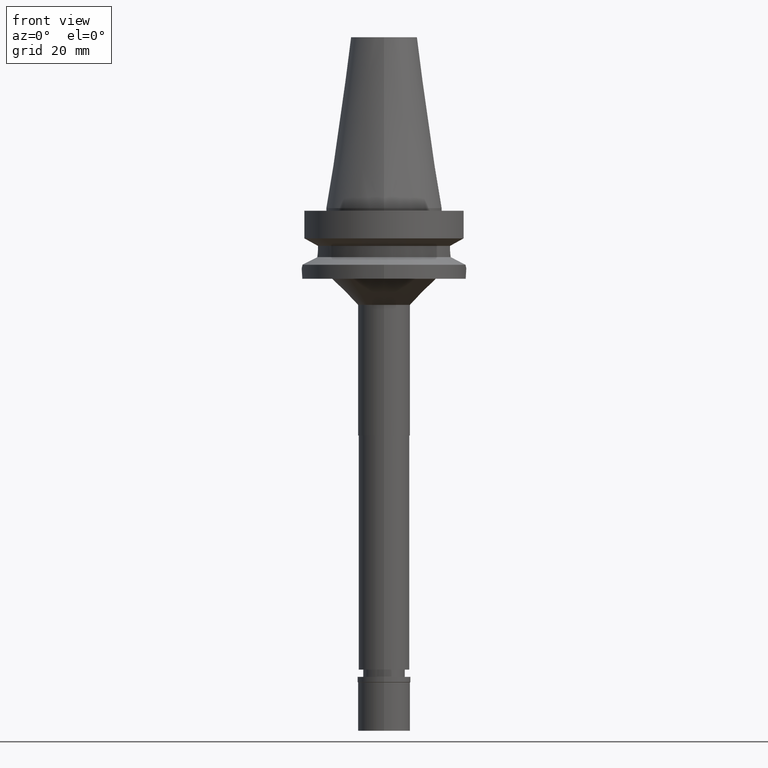
[diagram: clean part render]
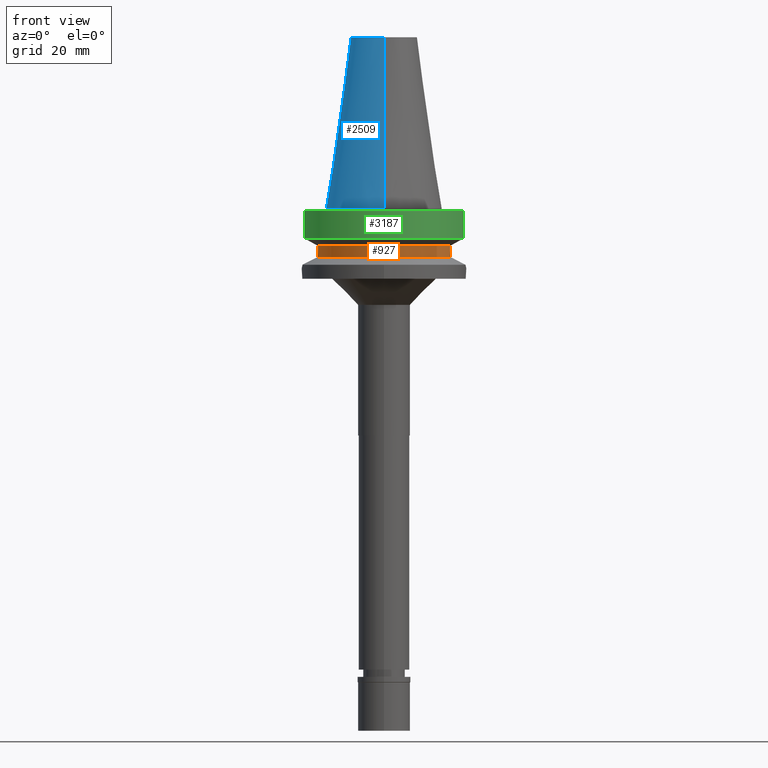
[diagram: same view with three faces highlighted in distinct colors, each labeled with its STEP entity id]
A machine part, front view with three faces highlighted in distinct colors.
Their STEP definitions:

[orange] entity #927 — the highlighted cylindrical surface (partial cylindrical patch) has radius 26.5 mm, axis along (0, 0, -1).
#59 = CARTESIAN_POINT ( 'NONE',  ( -25.35411833098896750, -7.708843546315279127, -17.27003765536344915 ) ) ;
#77 = VERTEX_POINT ( 'NONE', #2880 ) ;
#136 = CARTESIAN_POINT ( 'NONE',  ( 0.0000000000000000000, 0.0000000000000000000, -18.74774300138999905 ) ) ;
#186 = DIRECTION ( 'NONE',  ( 0.0000000000000000000, 0.0000000000000000000, -1.000000000000000000 ) ) ;
#199 = CARTESIAN_POINT ( 'NONE',  ( 25.24772266958000344, -8.050000000000000711, -14.94999999999999929 ) ) ;
#273 = CARTESIAN_POINT ( 'NONE',  ( 25.24772266957999278, -8.050000000000000711, -15.27000127568966370 ) ) ;
#298 = CARTESIAN_POINT ( 'NONE',  ( -25.53175183775000079, -7.097862220092999941, -18.74774300138999905 ) ) ;
#385 = DIRECTION ( 'NONE',  ( 1.016655041348999607E-06, 3.188601136220999098E-06, -0.9999999999943997020 ) ) ;
#458 = CARTESIAN_POINT ( 'NONE',  ( 25.31954463780459008, -7.821394976192608262, -16.85491936551852632 ) ) ;
#523 = AXIS2_PLACEMENT_3D ( 'NONE', #2870, #186, #1184 ) ;
#553 = CARTESIAN_POINT ( 'NONE',  ( -25.44392473217590123, -7.408251102513281339, -18.11706870842561656 ) ) ;
#563 = CARTESIAN_POINT ( 'NONE',  ( 25.24772266958000344, -8.050000000000000711, -14.45225699861000024 ) ) ;
#713 = VERTEX_POINT ( 'NONE', #298 ) ;
#927 = ADVANCED_FACE ( 'NONE', ( #2212 ), #1410, .T. ) ;
#952 = AXIS2_PLACEMENT_3D ( 'NONE', #1768, #2747, #2520 ) ;
#963 = B_SPLINE_CURVE_WITH_KNOTS ( 'NONE', 3,
 ( #199, #273, #1278, #1265, #2414, #1668, #2643, #2011, #1685, #458, #1443, #2658, #3165, #1427 ),
 .UNSPECIFIED., .F., .F.,
 ( 4, 2, 2, 1, 1, 2, 2, 4 ),
 ( 0.0000000000000000000, 0.2500000000000236478, 0.3750000000000341394, 0.4375000000000379696, 0.4687500000000388023, 0.4843750000000391909, 0.5000000000000396350, 1.000000000000000000 ),
 .UNSPECIFIED. ) ;
#998 = VECTOR ( 'NONE', #3105, 1000.000000000000000 ) ;
#1184 = DIRECTION ( 'NONE',  ( 0.0000000000000000000, -1.000000000000000000, 0.0000000000000000000 ) ) ;
#1192 = CARTESIAN_POINT ( 'NONE',  ( -25.24772413111999825, -8.049995416064998466, -14.45229202584999939 ) ) ;
#1204 = CIRCLE ( 'NONE', #2422, 26.49999999999998224 ) ;
#1218 = VECTOR ( 'NONE', #385, 999.9999999999998863 ) ;
#1265 = CARTESIAN_POINT ( 'NONE',  ( 25.27269574104417060, -7.971769474988236404, -16.08146184977856308 ) ) ;
#1278 = CARTESIAN_POINT ( 'NONE',  ( 25.25396593744603280, -8.030896968437316374, -15.59377931139369799 ) ) ;
#1281 = EDGE_CURVE ( 'NONE', #713, #77, #1204, .T. ) ;
#1347 = ORIENTED_EDGE ( 'NONE', *, *, #2841, .T. ) ;
#1395 = DIRECTION ( 'NONE',  ( -0.9634623335000935818, -0.2678438573619981722, 0.0000000000000000000 ) ) ;
#1410 = CYLINDRICAL_SURFACE ( 'NONE', #523, 26.50000000000000000 ) ;
#1413 = ORIENTED_EDGE ( 'NONE', *, *, #1945, .F. ) ;
#1427 = CARTESIAN_POINT ( 'NONE',  ( 25.53175183775000079, -7.097862220092999941, -18.74774300138999905 ) ) ;
#1429 = CARTESIAN_POINT ( 'NONE',  ( -25.24772266958000344, -8.050000000000000711, -14.94999999999999929 ) ) ;
#1443 = CARTESIAN_POINT ( 'NONE',  ( 25.32121872273629037, -7.815971166075946108, -16.87703378350557415 ) ) ;
#1522 = CARTESIAN_POINT ( 'NONE',  ( -25.24772266958000344, -8.050000000000000711, -14.94999999999999929 ) ) ;
#1539 = VERTEX_POINT ( 'NONE', #563 ) ;
#1546 = CARTESIAN_POINT ( 'NONE',  ( 25.24772266958000344, -8.050000000000000711, -14.94999999999999929 ) ) ;
#1558 = CARTESIAN_POINT ( 'NONE',  ( -25.32550226136659433, -7.802082245156309881, -16.93251888162864205 ) ) ;
#1603 = LINE ( 'NONE', #1894, #1218 ) ;
#1655 = VERTEX_POINT ( 'NONE', #1192 ) ;
#1668 = CARTESIAN_POINT ( 'NONE',  ( 25.29454717857531421, -7.902012029757340628, -16.48868902758721688 ) ) ;
#1685 = CARTESIAN_POINT ( 'NONE',  ( 25.31652055493196940, -7.831184758210076424, -16.81426458570573246 ) ) ;
#1718 = CIRCLE ( 'NONE', #952, 26.50000000000000711 ) ;
#1751 = ORIENTED_EDGE ( 'NONE', *, *, #2055, .F. ) ;
#1768 = CARTESIAN_POINT ( 'NONE',  ( 0.0000000000000000000, 0.0000000000000000000, -14.45225699861000024 ) ) ;
#1772 = CARTESIAN_POINT ( 'NONE',  ( -25.39164478449761475, -7.584820969893641518, -17.65194245036902387 ) ) ;
#1818 = ORIENTED_EDGE ( 'NONE', *, *, #1281, .T. ) ;
#1830 = VERTEX_POINT ( 'NONE', #1546 ) ;
#1831 = LINE ( 'NONE', #1842, #998 ) ;
#1842 = CARTESIAN_POINT ( 'NONE',  ( -25.24772266958000344, -8.050000000000000711, -14.94999999999999929 ) ) ;
#1894 = CARTESIAN_POINT ( 'NONE',  ( 25.24772216353000331, -8.050001587143000847, -14.45224487143999959 ) ) ;
#1945 = EDGE_CURVE ( 'NONE', #713, #2444, #2452, .T. ) ;
#1996 = CARTESIAN_POINT ( 'NONE',  ( -25.32844325893329085, -7.792538688759382381, -16.96970524096600386 ) ) ;
#2011 = CARTESIAN_POINT ( 'NONE',  ( 25.31205759391835031, -7.845621557313780414, -16.75326793501433542 ) ) ;
#2055 = EDGE_CURVE ( 'NONE', #2444, #1655, #1831, .T. ) ;
#2170 = ORIENTED_EDGE ( 'NONE', *, *, #2687, .F. ) ;
#2212 = FACE_OUTER_BOUND ( 'NONE', #2742, .T. ) ;
#2265 = CARTESIAN_POINT ( 'NONE',  ( -25.37572817766068312, -7.637723572221430501, -17.49814693646531083 ) ) ;
#2414 = CARTESIAN_POINT ( 'NONE',  ( 25.28049982587672417, -7.946985634365288043, -16.24435369794348816 ) ) ;
#2422 = AXIS2_PLACEMENT_3D ( 'NONE', #136, #2614, #1395 ) ;
#2444 = VERTEX_POINT ( 'NONE', #1429 ) ;
#2452 = B_SPLINE_CURVE_WITH_KNOTS ( 'NONE', 3,
 ( #2994, #2556, #553, #1772, #2265, #59, #3023, #2771, #1996, #1558, #2540, #2974, #2729, #1522 ),
 .UNSPECIFIED., .F., .F.,
 ( 4, 2, 2, 1, 1, 2, 2, 4 ),
 ( 0.0000000000000000000, 0.2500000000000232592, 0.3750000000000336398, 0.4375000000000388578, 0.4687500000000429101, 0.4843750000000435763, 0.5000000000000441869, 1.000000000000000000 ),
 .UNSPECIFIED. ) ;
#2520 = DIRECTION ( 'NONE',  ( 0.9527442516822307583, -0.3037735849057093818, 0.0000000000000000000 ) ) ;
#2540 = CARTESIAN_POINT ( 'NONE',  ( -25.32419265906723638, -7.806329682139816484, -16.91574545217585168 ) ) ;
#2556 = CARTESIAN_POINT ( 'NONE',  ( -25.48481820018465527, -7.266687417048224518, -18.43221401829536177 ) ) ;
#2564 = ORIENTED_EDGE ( 'NONE', *, *, #3034, .F. ) ;
#2614 = DIRECTION ( 'NONE',  ( 0.0000000000000000000, 0.0000000000000000000, 1.000000000000000000 ) ) ;
#2643 = CARTESIAN_POINT ( 'NONE',  ( 25.30215616128705136, -7.877576232087731611, -16.61085564871518372 ) ) ;
#2658 = CARTESIAN_POINT ( 'NONE',  ( 25.36818304353125342, -7.663708172037523525, -17.48836484317375195 ) ) ;
#2687 = EDGE_CURVE ( 'NONE', #1830, #77, #963, .T. ) ;
#2729 = CARTESIAN_POINT ( 'NONE',  ( -25.24772266957998923, -8.049999999999995381, -15.58999073686769954 ) ) ;
#2742 = EDGE_LOOP ( 'NONE', ( #1413, #1818, #2170, #2564, #1347, #1751 ) ) ;
#2747 = DIRECTION ( 'NONE',  ( 0.0000000000000000000, 0.0000000000000000000, -1.000000000000000000 ) ) ;
#2771 = CARTESIAN_POINT ( 'NONE',  ( -25.33292553852032825, -7.777985707516963387, -17.02558215515367834 ) ) ;
#2841 = EDGE_CURVE ( 'NONE', #1539, #1655, #1718, .T. ) ;
#2870 = CARTESIAN_POINT ( 'NONE',  ( 0.0000000000000000000, 0.0000000000000000000, 0.0000000000000000000 ) ) ;
#2880 = CARTESIAN_POINT ( 'NONE',  ( 25.53175183775000079, -7.097862220092999941, -18.74774300138999905 ) ) ;
#2974 = CARTESIAN_POINT ( 'NONE',  ( -25.27269246206562769, -7.973290322419560816, -16.24535685341755453 ) ) ;
#2994 = CARTESIAN_POINT ( 'NONE',  ( -25.53175183775000079, -7.097862220092999941, -18.74774300138999905 ) ) ;
#3023 = CARTESIAN_POINT ( 'NONE',  ( -25.34387967354902926, -7.742345491371905197, -17.15662736176142644 ) ) ;
#3034 = EDGE_CURVE ( 'NONE', #1539, #1830, #1603, .T. ) ;
#3105 = DIRECTION ( 'NONE',  ( -2.936548755725931486E-06, 9.210088838301772938E-06, 0.9999999999532754869 ) ) ;
#3165 = CARTESIAN_POINT ( 'NONE',  ( 25.43788636145708537, -7.435506143392315082, -18.11669712857339576 ) ) ;

[blue] entity #2509 — the highlighted conical surface has half-angle 8.297 deg.
#156 = CARTESIAN_POINT ( 'NONE',  ( 0.0000000000000000000, 22.22500000000000142, 4.263256414560999963E-14 ) ) ;
#374 = CARTESIAN_POINT ( 'NONE',  ( 0.0000000000000000000, 0.0000000000000000000, 32.70000000000000284 ) ) ;
#418 = DIRECTION ( 'NONE',  ( 0.0000000000000000000, 0.0000000000000000000, -1.000000000000000000 ) ) ;
#425 = AXIS2_PLACEMENT_3D ( 'NONE', #2620, #418, #2898 ) ;
#462 = DIRECTION ( 'NONE',  ( 0.0000000000000000000, 0.0000000000000000000, -1.000000000000000000 ) ) ;
#539 = ORIENTED_EDGE ( 'NONE', *, *, #2255, .T. ) ;
#589 = EDGE_CURVE ( 'NONE', #1815, #2157, #990, .T. ) ;
#616 = CARTESIAN_POINT ( 'NONE',  ( 0.0000000000000000000, 12.68766899429999917, 65.40000000000000568 ) ) ;
#660 = EDGE_CURVE ( 'NONE', #1711, #2157, #1977, .T. ) ;
#715 = EDGE_CURVE ( 'NONE', #2241, #1815, #1990, .T. ) ;
#780 = CARTESIAN_POINT ( 'NONE',  ( 0.0000000000000000000, -22.22500000000000142, 4.263256414560999963E-14 ) ) ;
#889 = CIRCLE ( 'NONE', #425, 12.68766899429999917 ) ;
#949 = CONICAL_SURFACE ( 'NONE', #2735, 17.45633449714999941, 0.1448099680379422438 ) ;
#990 = CIRCLE ( 'NONE', #2570, 22.22500000000000142 ) ;
#1089 = VECTOR ( 'NONE', #1275, 1000.000000000000114 ) ;
#1259 = CARTESIAN_POINT ( 'NONE',  ( 0.0000000000000000000, -12.68766899429999917, 65.40000000000000568 ) ) ;
#1275 = DIRECTION ( 'NONE',  ( 0.0000000000000000000, -0.1443043893539925626, -0.9895333461855498891 ) ) ;
#1302 = DIRECTION ( 'NONE',  ( 0.0000000000000000000, 0.1443043893539925626, -0.9895333461855498891 ) ) ;
#1441 = ORIENTED_EDGE ( 'NONE', *, *, #715, .F. ) ;
#1479 = EDGE_LOOP ( 'NONE', ( #2502, #1441, #539, #3176 ) ) ;
#1579 = FACE_OUTER_BOUND ( 'NONE', #1479, .T. ) ;
#1647 = CARTESIAN_POINT ( 'NONE',  ( 0.0000000000000000000, -12.68766899429999917, 65.40000000000000568 ) ) ;
#1711 = VERTEX_POINT ( 'NONE', #616 ) ;
#1815 = VERTEX_POINT ( 'NONE', #780 ) ;
#1946 = CARTESIAN_POINT ( 'NONE',  ( 0.0000000000000000000, 0.0000000000000000000, 0.0000000000000000000 ) ) ;
#1977 = LINE ( 'NONE', #2949, #2989 ) ;
#1990 = LINE ( 'NONE', #1259, #1089 ) ;
#2157 = VERTEX_POINT ( 'NONE', #156 ) ;
#2241 = VERTEX_POINT ( 'NONE', #1647 ) ;
#2255 = EDGE_CURVE ( 'NONE', #2241, #1711, #889, .T. ) ;
#2502 = ORIENTED_EDGE ( 'NONE', *, *, #589, .F. ) ;
#2509 = ADVANCED_FACE ( 'NONE', ( #1579 ), #949, .T. ) ;
#2558 = DIRECTION ( 'NONE',  ( 0.0000000000000000000, 0.0000000000000000000, -1.000000000000000000 ) ) ;
#2570 = AXIS2_PLACEMENT_3D ( 'NONE', #1946, #462, #2650 ) ;
#2620 = CARTESIAN_POINT ( 'NONE',  ( 0.0000000000000000000, 0.0000000000000000000, 65.40000000000000568 ) ) ;
#2650 = DIRECTION ( 'NONE',  ( 0.0000000000000000000, -1.000000000000000000, 0.0000000000000000000 ) ) ;
#2735 = AXIS2_PLACEMENT_3D ( 'NONE', #374, #2558, #2831 ) ;
#2831 = DIRECTION ( 'NONE',  ( 0.0000000000000000000, -1.000000000000000000, 0.0000000000000000000 ) ) ;
#2898 = DIRECTION ( 'NONE',  ( 0.0000000000000000000, -1.000000000000000000, 0.0000000000000000000 ) ) ;
#2949 = CARTESIAN_POINT ( 'NONE',  ( 0.0000000000000000000, 12.68766899429999917, 65.40000000000000568 ) ) ;
#2989 = VECTOR ( 'NONE', #1302, 1000.000000000000114 ) ;
#3176 = ORIENTED_EDGE ( 'NONE', *, *, #660, .T. ) ;

[green] entity #3187 — the highlighted cylindrical surface (partial cylindrical patch) has radius 31.5 mm, axis along (0, 0, -1).
#176 = CARTESIAN_POINT ( 'NONE',  ( -30.45402272279000044, -8.050000000000000711, -1.000000000000000000 ) ) ;
#219 = AXIS2_PLACEMENT_3D ( 'NONE', #935, #1222, #3157 ) ;
#283 = CARTESIAN_POINT ( 'NONE',  ( 0.0000000000000000000, 0.0000000000000000000, 0.0000000000000000000 ) ) ;
#311 = DIRECTION ( 'NONE',  ( 0.0000000000000000000, -1.000000000000000000, 0.0000000000000000000 ) ) ;
#316 = VECTOR ( 'NONE', #1681, 1000.000000000000114 ) ;
#339 = ORIENTED_EDGE ( 'NONE', *, *, #767, .T. ) ;
#415 = CARTESIAN_POINT ( 'NONE',  ( -30.45402291358000113, -8.049999278195999253, -11.56551215380000031 ) ) ;
#702 = DIRECTION ( 'NONE',  ( 1.805835173812990934E-08, -6.831694115686962827E-08, 0.9999999999999974465 ) ) ;
#703 = LINE ( 'NONE', #2195, #316 ) ;
#759 = VERTEX_POINT ( 'NONE', #2272 ) ;
#767 = EDGE_CURVE ( 'NONE', #3022, #1970, #1452, .T. ) ;
#935 = CARTESIAN_POINT ( 'NONE',  ( 0.0000000000000000000, 0.0000000000000000000, -11.56550565266999975 ) ) ;
#1000 = CYLINDRICAL_SURFACE ( 'NONE', #1869, 31.50000000000000000 ) ;
#1040 = EDGE_CURVE ( 'NONE', #3022, #759, #703, .T. ) ;
#1222 = DIRECTION ( 'NONE',  ( 0.0000000000000000000, 0.0000000000000000000, 1.000000000000000000 ) ) ;
#1373 = EDGE_CURVE ( 'NONE', #2998, #759, #1507, .T. ) ;
#1452 = CIRCLE ( 'NONE', #2770, 31.50000000000000000 ) ;
#1507 = CIRCLE ( 'NONE', #219, 31.50000000000000000 ) ;
#1543 = CARTESIAN_POINT ( 'NONE',  ( 0.0000000000000000000, 0.0000000000000000000, -1.000000000000000000 ) ) ;
#1678 = ORIENTED_EDGE ( 'NONE', *, *, #1373, .T. ) ;
#1681 = DIRECTION ( 'NONE',  ( -1.036649184569017503E-07, -3.921750938789068461E-07, -0.9999999999999177325 ) ) ;
#1694 = DIRECTION ( 'NONE',  ( 0.0000000000000000000, -1.000000000000000000, 0.0000000000000000000 ) ) ;
#1813 = VECTOR ( 'NONE', #702, 1000.000000000000114 ) ;
#1868 = ORIENTED_EDGE ( 'NONE', *, *, #2959, .F. ) ;
#1869 = AXIS2_PLACEMENT_3D ( 'NONE', #283, #2171, #1694 ) ;
#1880 = CARTESIAN_POINT ( 'NONE',  ( 30.45402272279000044, -8.050000000000000711, -1.000000000000000000 ) ) ;
#1911 = LINE ( 'NONE', #2893, #1813 ) ;
#1970 = VERTEX_POINT ( 'NONE', #176 ) ;
#2047 = EDGE_LOOP ( 'NONE', ( #1868, #1678, #2651, #339 ) ) ;
#2171 = DIRECTION ( 'NONE',  ( 0.0000000000000000000, 0.0000000000000000000, -1.000000000000000000 ) ) ;
#2195 = CARTESIAN_POINT ( 'NONE',  ( 30.45402272279000044, -8.050000000000000711, -1.000000000000000000 ) ) ;
#2217 = FACE_OUTER_BOUND ( 'NONE', #2047, .T. ) ;
#2272 = CARTESIAN_POINT ( 'NONE',  ( 30.45402272279000044, -8.049999999999000622, -11.56550565266999975 ) ) ;
#2516 = DIRECTION ( 'NONE',  ( 0.0000000000000000000, 0.0000000000000000000, -1.000000000000000000 ) ) ;
#2651 = ORIENTED_EDGE ( 'NONE', *, *, #1040, .F. ) ;
#2770 = AXIS2_PLACEMENT_3D ( 'NONE', #1543, #2516, #311 ) ;
#2893 = CARTESIAN_POINT ( 'NONE',  ( -30.45402291358000113, -8.049999278195999253, -11.56551215380000031 ) ) ;
#2959 = EDGE_CURVE ( 'NONE', #2998, #1970, #1911, .T. ) ;
#2998 = VERTEX_POINT ( 'NONE', #415 ) ;
#3022 = VERTEX_POINT ( 'NONE', #1880 ) ;
#3157 = DIRECTION ( 'NONE',  ( 0.0000000000000000000, -1.000000000000000000, 0.0000000000000000000 ) ) ;
#3187 = ADVANCED_FACE ( 'NONE', ( #2217 ), #1000, .T. ) ;